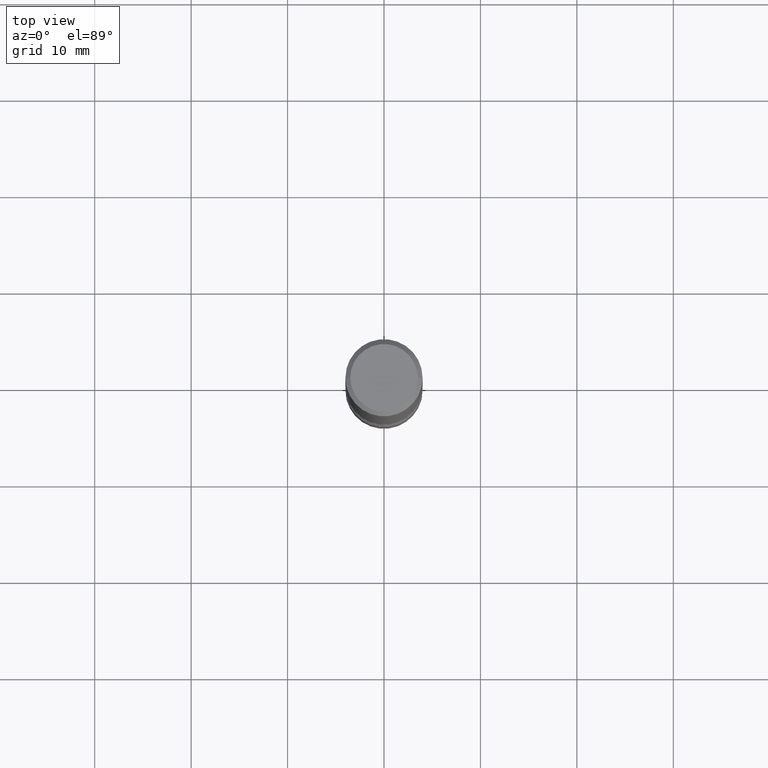
[diagram: clean part render]
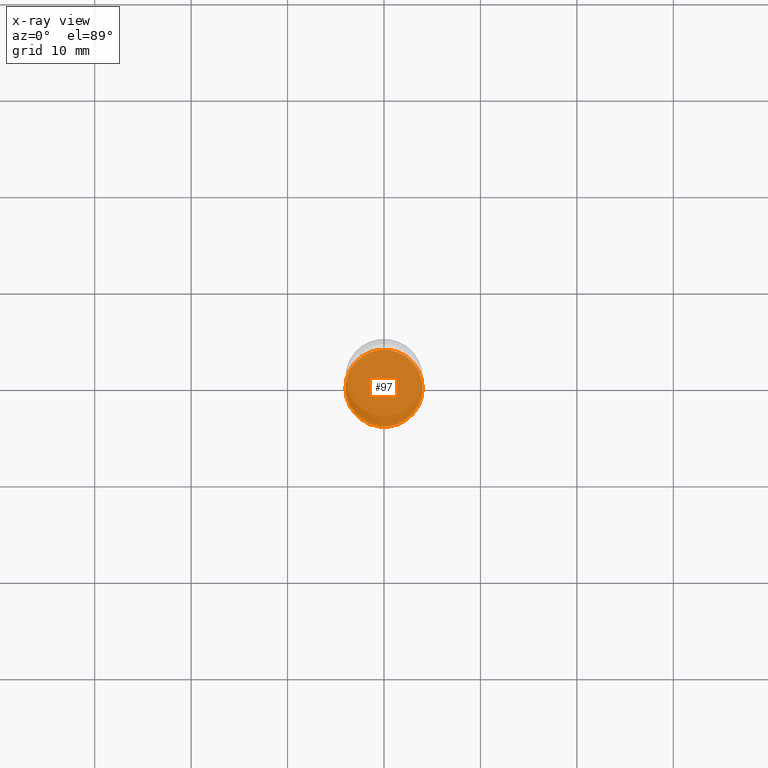
[diagram: x-ray — body ghosted, one internal face saturated and labeled with its STEP entity id]
A machine part, top view, then the same camera in x-ray: the body is ghosted and one INTERNAL B-rep face — a face not visible from any outside direction — is saturated and labeled: STEP entity #97.
In plain terms, the highlighted planar face has unit normal (0, -0, -1).
Its self-contained STEP definition (entity closure, byte-faithful):
#56 = CIRCLE ( 'NONE', #141, 0.1575000000000001399 ) ;
#77 = CARTESIAN_POINT ( 'NONE',  ( -0.1575000000000001399, -8.331462305091523914E-15, -2.480399999999999494 ) ) ;
#93 = EDGE_LOOP ( 'NONE', ( #155, #305 ) ) ;
#97 = ADVANCED_FACE ( 'NONE', ( #109 ), #153, .F. ) ;
#109 = FACE_OUTER_BOUND ( 'NONE', #93, .T. ) ;
#135 = VERTEX_POINT ( 'NONE', #77 ) ;
#141 = AXIS2_PLACEMENT_3D ( 'NONE', #433, #309, #223 ) ;
#153 = PLANE ( 'NONE',  #292 ) ;
#155 = ORIENTED_EDGE ( 'NONE', *, *, #454, .T. ) ;
#201 = AXIS2_PLACEMENT_3D ( 'NONE', #282, #459, #234 ) ;
#223 = DIRECTION ( 'NONE',  ( 1.000000000000000000, -6.982962677686268288E-15, 0.000000000000000000 ) ) ;
#234 = DIRECTION ( 'NONE',  ( 1.000000000000000000, -6.982962677686268288E-15, 0.000000000000000000 ) ) ;
#248 = CIRCLE ( 'NONE', #201, 0.1575000000000001399 ) ;
#282 = CARTESIAN_POINT ( 'NONE',  ( 6.065740826861612418E-29, -8.660270312866537270E-15, -2.480399999999999494 ) ) ;
#292 = AXIS2_PLACEMENT_3D ( 'NONE', #372, #325, #505 ) ;
#305 = ORIENTED_EDGE ( 'NONE', *, *, #337, .T. ) ;
#309 = DIRECTION ( 'NONE',  ( -2.445468806185136597E-29, 3.491481338843145583E-15, 1.000000000000000000 ) ) ;
#325 = DIRECTION ( 'NONE',  ( 2.438088387897960049E-29, -3.491481338843145188E-15, -1.000000000000000000 ) ) ;
#337 = EDGE_CURVE ( 'NONE', #135, #533, #56, .T. ) ;
#372 = CARTESIAN_POINT ( 'NONE',  ( 6.065740826861612418E-29, -8.660270312866537270E-15, -2.480399999999999494 ) ) ;
#433 = CARTESIAN_POINT ( 'NONE',  ( 6.065740826861612418E-29, -8.660270312866537270E-15, -2.480399999999999494 ) ) ;
#454 = EDGE_CURVE ( 'NONE', #533, #135, #248, .T. ) ;
#459 = DIRECTION ( 'NONE',  ( -2.445468806185136597E-29, 3.491481338843145583E-15, 1.000000000000000000 ) ) ;
#500 = CARTESIAN_POINT ( 'NONE',  ( 0.1575000000000001399, -9.760086934602125539E-15, -2.480399999999999494 ) ) ;
#505 = DIRECTION ( 'NONE',  ( -1.000000000000000000, 6.982962677686265922E-15, -4.876176775795935793E-29 ) ) ;
#533 = VERTEX_POINT ( 'NONE', #500 ) ;